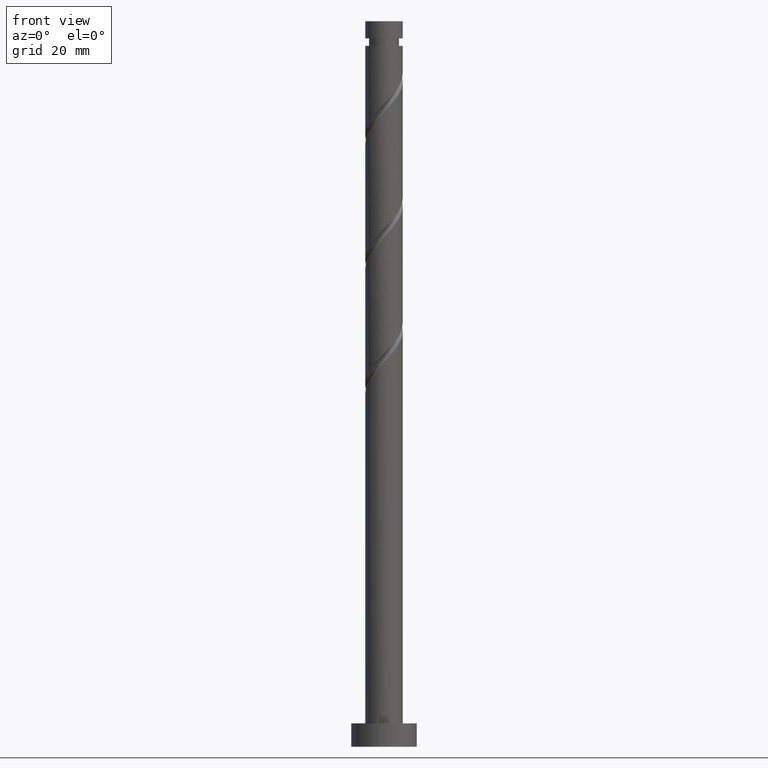
[diagram: clean part render]
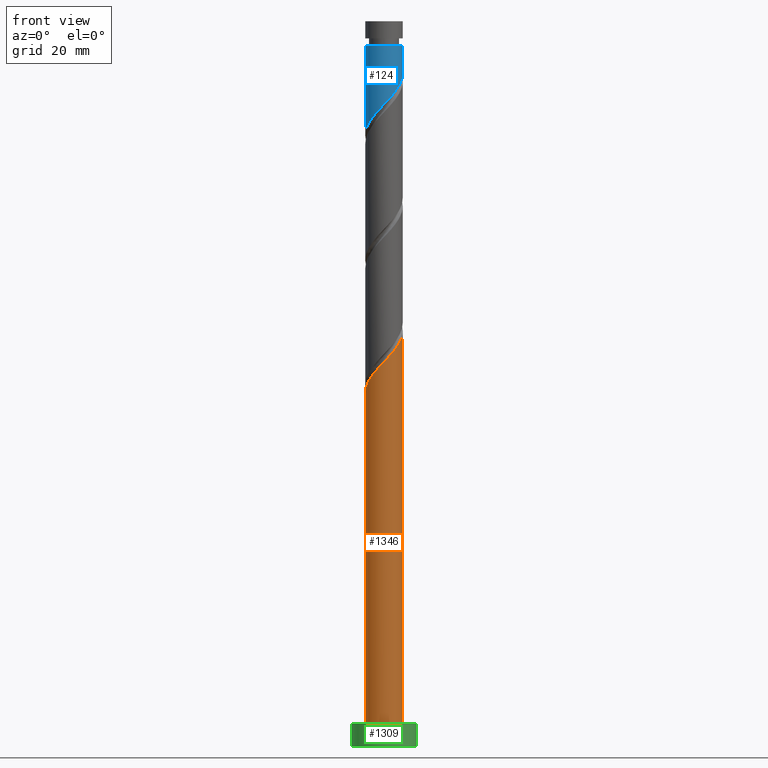
[diagram: same view with three faces highlighted in distinct colors, each labeled with its STEP entity id]
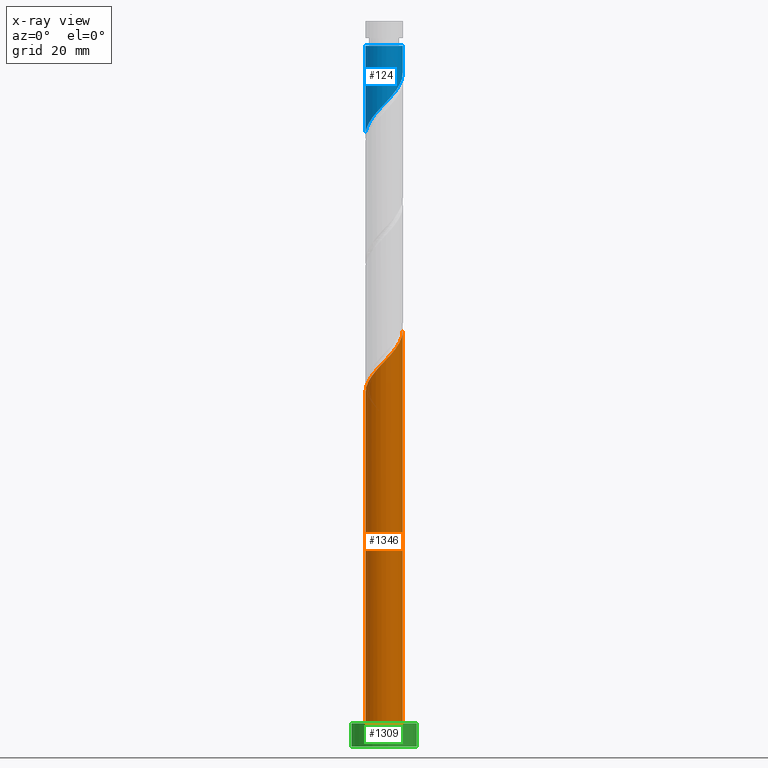
[diagram: x-ray of the same camera — body ghosted, the three highlighted faces saturated]
A machine part, front view with three faces highlighted in distinct colors.
The next image is the same camera in x-ray (body ghosted, the three faces saturated) — at least one of them is partly hidden behind the body in this view.
Their STEP definitions:

[orange] entity #1346 — the highlighted cylindrical surface (edge-blend (fillet) strip) has radius 4 mm, axis along (-0, -0, -1).
#28 = CARTESIAN_POINT ( 'NONE',  ( -4.000000000000005329, -2.752055009443334096E-15, 75.55009455226698378 ) ) ;
#82 = ORIENTED_EDGE ( 'NONE', *, *, #1225, .F. ) ;
#100 = ORIENTED_EDGE ( 'NONE', *, *, #752, .T. ) ;
#103 = CARTESIAN_POINT ( 'NONE',  ( 4.000000000000005329, 2.557616340297881178E-15, 88.88342788560029817 ) ) ;
#122 = CARTESIAN_POINT ( 'NONE',  ( 2.376675911072817282, -3.268358422650720740, 84.88439751641635667 ) ) ;
#144 = VERTEX_POINT ( 'NONE', #28 ) ;
#162 = EDGE_LOOP ( 'NONE', ( #1380, #82, #100, #1046 ) ) ;
#230 = VERTEX_POINT ( 'NONE', #681 ) ;
#359 = CARTESIAN_POINT ( 'NONE',  ( -3.960310248029106805, -0.8041752946599106666, 76.39954903156784383 ) ) ;
#360 = DIRECTION ( 'NONE',  ( -0.000000000000000000, -0.000000000000000000, -1.000000000000000000 ) ) ;
#366 = CARTESIAN_POINT ( 'NONE',  ( 0.000000000000000000, 0.000000000000000000, 5.000000000000000000 ) ) ;
#371 = CARTESIAN_POINT ( 'NONE',  ( -4.000000000000005329, -2.752055009443334096E-15, 75.55009455226698378 ) ) ;
#379 = CARTESIAN_POINT ( 'NONE',  ( 4.000000000000000000, 4.898587196589412829E-16, 155.0000000000000000 ) ) ;
#401 = VERTEX_POINT ( 'NONE', #1448 ) ;
#484 = DIRECTION ( 'NONE',  ( -0.000000000000000000, -0.000000000000000000, -1.000000000000000000 ) ) ;
#491 = CARTESIAN_POINT ( 'NONE',  ( 3.896423597087605994, -0.9043689247530174447, 87.91470054671937362 ) ) ;
#504 = CARTESIAN_POINT ( 'NONE',  ( 3.201206812320812833, -2.466379960577149699, 86.09651872853758903 ) ) ;
#513 = CARTESIAN_POINT ( 'NONE',  ( -1.449682647155075665, -3.728058505782533505, 80.64197327399209314 ) ) ;
#514 = VECTOR ( 'NONE', #360, 1000.000000000000000 ) ;
#591 = VERTEX_POINT ( 'NONE', #1373 ) ;
#601 = DIRECTION ( 'NONE',  ( -1.000000000000000000, 0.000000000000000000, 0.000000000000000000 ) ) ;
#614 =( BOUNDED_CURVE ( )  B_SPLINE_CURVE ( 2, ( #371, #1654, #1641, #359, #1634, #1515, #1261, #766, #896, #1273, #513, #884, #1132, #1279, #634, #890, #640, #122, #1497, #504, #1010, #1401, #491, #1387, #103 ),
 .UNSPECIFIED., .F., .T. ) 
 B_SPLINE_CURVE_WITH_KNOTS ( ( 3, 2, 2, 2, 2, 2, 2, 2, 2, 2, 2, 2, 3 ),
 ( 0.05452521624175123843, 0.05681818181818176772, 0.06818181818181823228, 0.07954545454545458583, 0.09090909090909093937, 0.1022727272727272929, 0.1136363636363636465, 0.1250000000000000000, 0.1363636363636363535, 0.1477272727272727071, 0.1590909090909090606, 0.1704545454545454142, 0.1795252162417513286 ),
 .UNSPECIFIED. ) 
 CURVE ( )  GEOMETRIC_REPRESENTATION_ITEM ( )  RATIONAL_B_SPLINE_CURVE ( ( 0.9061101570135622341, 0.9072237824201443424, 0.9090909090909219392, 0.8998376744372241776, 0.9090909090909219392, 0.8998376744372241776, 0.9090909090909219392, 0.8998376744372241776, 0.9090909090909219392, 0.8998376744372241776, 0.9090909090909219392, 0.8998376744372241776, 0.9090909090909219392, 0.8998376744372241776, 0.9090909090909219392, 0.8998376744372241776, 0.9090909090909219392, 0.8998376744372241776, 0.9090909090909219392, 0.8998376744372241776, 0.9090909090909219392, 0.8998376744372241776, 0.9090909090909219392, 0.9017048011080016634, 0.9061101570135623451 ) ) 
 REPRESENTATION_ITEM ( '' )  );
#634 = CARTESIAN_POINT ( 'NONE',  ( 0.7959899496852965717, -3.920000000000005702, 83.06621569823454365 ) ) ;
#640 = CARTESIAN_POINT ( 'NONE',  ( 1.868138386609204726, -3.536956172823916056, 84.27833691035574759 ) ) ;
#648 = VECTOR ( 'NONE', #484, 1000.000000000000000 ) ;
#681 = CARTESIAN_POINT ( 'NONE',  ( 4.000000000000005329, 2.557616340297881178E-15, 88.88342788560029817 ) ) ;
#752 = EDGE_CURVE ( 'NONE', #144, #401, #1629, .T. ) ;
#766 = CARTESIAN_POINT ( 'NONE',  ( -2.896854998579486917, -2.817620677520442651, 78.82379145581026592 ) ) ;
#884 = CARTESIAN_POINT ( 'NONE',  ( -0.9136687552802127410, -3.936491403624608143, 81.24803388005270222 ) ) ;
#890 = CARTESIAN_POINT ( 'NONE',  ( 1.359600862145592615, -3.805553922997109595, 83.67227630429512431 ) ) ;
#896 = CARTESIAN_POINT ( 'NONE',  ( -2.441275768804712420, -3.168623142730450759, 79.42985206187088920 ) ) ;
#897 = LINE ( 'NONE', #379, #514 ) ;
#951 = AXIS2_PLACEMENT_3D ( 'NONE', #366, #1499, #1123 ) ;
#976 = FACE_OUTER_BOUND ( 'NONE', #162, .T. ) ;
#1010 = CARTESIAN_POINT ( 'NONE',  ( 3.483800894132681236, -1.965485011400590842, 86.70257933459818389 ) ) ;
#1046 = ORIENTED_EDGE ( 'NONE', *, *, #1626, .T. ) ;
#1103 = CYLINDRICAL_SURFACE ( 'NONE', #1234, 4.000000000000000000 ) ;
#1123 = DIRECTION ( 'NONE',  ( 1.000000000000000000, 0.000000000000000000, 0.000000000000000000 ) ) ;
#1132 = CARTESIAN_POINT ( 'NONE',  ( -0.3406448590276058841, -3.985468740313755642, 81.85409448611332550 ) ) ;
#1225 = EDGE_CURVE ( 'NONE', #144, #230, #614, .T. ) ;
#1234 = AXIS2_PLACEMENT_3D ( 'NONE', #1352, #1614, #601 ) ;
#1261 = CARTESIAN_POINT ( 'NONE',  ( -3.235091246491827999, -2.352484777181776288, 78.21773084974967105 ) ) ;
#1273 = CARTESIAN_POINT ( 'NONE',  ( -1.985696539029938146, -3.519625607940459311, 80.03591266793146985 ) ) ;
#1279 = CARTESIAN_POINT ( 'NONE',  ( 0.2323790372250007230, -4.034446077002900921, 82.46015509217390616 ) ) ;
#1346 = ADVANCED_FACE ( 'NONE', ( #976 ), #1103, .T. ) ;
#1352 = CARTESIAN_POINT ( 'NONE',  ( 0.000000000000000000, 0.000000000000000000, 155.0000000000000000 ) ) ;
#1373 = CARTESIAN_POINT ( 'NONE',  ( 4.000000000000000000, 4.898587196589412829E-16, 5.000000000000000000 ) ) ;
#1380 = ORIENTED_EDGE ( 'NONE', *, *, #1623, .F. ) ;
#1387 = CARTESIAN_POINT ( 'NONE',  ( 4.000000000000007105, -0.4581157095404908008, 88.39746793262902713 ) ) ;
#1401 = CARTESIAN_POINT ( 'NONE',  ( 3.766394975944548751, -1.464590062224029987, 87.30863994065876454 ) ) ;
#1448 = CARTESIAN_POINT ( 'NONE',  ( -4.000000000000000000, 0.000000000000000000, 5.000000000000000000 ) ) ;
#1450 = CIRCLE ( 'NONE', #951, 4.000000000000000000 ) ;
#1497 = CARTESIAN_POINT ( 'NONE',  ( 2.788941361696814614, -2.867369191613936330, 85.49045812247696574 ) ) ;
#1499 = DIRECTION ( 'NONE',  ( 0.000000000000000000, 0.000000000000000000, 1.000000000000000000 ) ) ;
#1504 = CARTESIAN_POINT ( 'NONE',  ( -4.000000000000000000, 0.000000000000000000, 155.0000000000000000 ) ) ;
#1515 = CARTESIAN_POINT ( 'NONE',  ( -3.573327494404169524, -1.887348876843109702, 77.61167024368907619 ) ) ;
#1614 = DIRECTION ( 'NONE',  ( -0.000000000000000000, -0.000000000000000000, -1.000000000000000000 ) ) ;
#1623 = EDGE_CURVE ( 'NONE', #230, #591, #897, .T. ) ;
#1626 = EDGE_CURVE ( 'NONE', #401, #591, #1450, .T. ) ;
#1629 = LINE ( 'NONE', #1504, #648 ) ;
#1634 = CARTESIAN_POINT ( 'NONE',  ( -3.766818871216639053, -1.345762085751509796, 77.00560963762846711 ) ) ;
#1641 = CARTESIAN_POINT ( 'NONE',  ( -3.993381233129885466, -0.2300137536889534373, 75.79348842550726317 ) ) ;
#1654 = CARTESIAN_POINT ( 'NONE',  ( -4.000000000000006217, -0.1151021060952866354, 75.67219255698520897 ) ) ;

[blue] entity #124 — the highlighted cylindrical surface (edge-blend (fillet) strip) has radius 4 mm, axis along (-0, -0, -1).
#67 = DIRECTION ( 'NONE',  ( -1.000000000000000000, 0.000000000000000000, 0.000000000000000000 ) ) ;
#86 = VERTEX_POINT ( 'NONE', #1407 ) ;
#91 = CARTESIAN_POINT ( 'NONE',  ( -3.766394975944543422, -1.464590062224028433, 132.1571247891436371 ) ) ;
#96 = VERTEX_POINT ( 'NONE', #1663 ) ;
#104 = CARTESIAN_POINT ( 'NONE',  ( 4.000000000000000000, 4.898587196589412829E-16, 155.0000000000000000 ) ) ;
#108 = CARTESIAN_POINT ( 'NONE',  ( -1.868138386609203616, -3.536956172823910727, 135.1874278194466399 ) ) ;
#121 = DIRECTION ( 'NONE',  ( -1.000000000000000000, 0.000000000000000000, 0.000000000000000000 ) ) ;
#124 = ADVANCED_FACE ( 'NONE', ( #520 ), #1032, .T. ) ;
#186 = CARTESIAN_POINT ( 'NONE',  ( 0.000000000000000000, 0.000000000000000000, 149.7328823649012008 ) ) ;
#218 = CARTESIAN_POINT ( 'NONE',  ( 4.000000000000000000, 9.572365250237742804E-16, 143.9156701775353895 ) ) ;
#220 = CARTESIAN_POINT ( 'NONE',  ( -3.483800894132676351, -1.965485011400587068, 132.7631853952042036 ) ) ;
#231 = CARTESIAN_POINT ( 'NONE',  ( -4.000000000000000000, -1.824732125826569623E-15, 130.5823368442021035 ) ) ;
#280 = EDGE_LOOP ( 'NONE', ( #1240, #861, #835, #1074 ) ) ;
#350 = DIRECTION ( 'NONE',  ( -0.000000000000000000, -0.000000000000000000, -1.000000000000000000 ) ) ;
#357 = CARTESIAN_POINT ( 'NONE',  ( 4.000000000000000000, -0.1151021060953038855, 143.7935721728172211 ) ) ;
#474 = CARTESIAN_POINT ( 'NONE',  ( 1.449682647155072557, -3.728058505782528620, 138.8237914558102659 ) ) ;
#487 = CARTESIAN_POINT ( 'NONE',  ( 3.573327494404164639, -1.887348876843107703, 141.8540944861133255 ) ) ;
#494 = EDGE_CURVE ( 'NONE', #96, #1063, #1000, .T. ) ;
#506 = VECTOR ( 'NONE', #1219, 1000.000000000000000 ) ;
#507 = EDGE_CURVE ( 'NONE', #1063, #86, #1454, .T. ) ;
#520 = FACE_OUTER_BOUND ( 'NONE', #280, .T. ) ;
#608 = CARTESIAN_POINT ( 'NONE',  ( -3.896423597087600665, -0.9043689247530153352, 131.5510641830830139 ) ) ;
#626 = CARTESIAN_POINT ( 'NONE',  ( -2.788941361696812393, -2.867369191613931001, 133.9753066073254502 ) ) ;
#698 = DIRECTION ( 'NONE',  ( -0.000000000000000000, -0.000000000000000000, -1.000000000000000000 ) ) ;
#735 = VERTEX_POINT ( 'NONE', #218 ) ;
#750 = CARTESIAN_POINT ( 'NONE',  ( 2.896854998579484253, -2.817620677520439987, 140.6419732739920789 ) ) ;
#835 = ORIENTED_EDGE ( 'NONE', *, *, #507, .T. ) ;
#861 = ORIENTED_EDGE ( 'NONE', *, *, #494, .T. ) ;
#873 = CARTESIAN_POINT ( 'NONE',  ( 3.235091246491824002, -2.352484777181773179, 141.2480338800527591 ) ) ;
#882 = CARTESIAN_POINT ( 'NONE',  ( -1.359600862145591949, -3.805553922997103822, 135.7934884255072632 ) ) ;
#907 = LINE ( 'NONE', #104, #1547 ) ;
#921 = AXIS2_PLACEMENT_3D ( 'NONE', #1653, #1272, #121 ) ;
#967 = CARTESIAN_POINT ( 'NONE',  ( -3.999999999999993339, 0.000000000000000000, 149.7328823649012008 ) ) ;
#1000 = CIRCLE ( 'NONE', #1229, 3.999999999999993339 ) ;
#1032 = CYLINDRICAL_SURFACE ( 'NONE', #921, 4.000000000000000000 ) ;
#1063 = VERTEX_POINT ( 'NONE', #967 ) ;
#1074 = ORIENTED_EDGE ( 'NONE', *, *, #1224, .F. ) ;
#1119 = CARTESIAN_POINT ( 'NONE',  ( 3.766818871216632836, -1.345762085751509129, 142.4601550921739772 ) ) ;
#1136 = CARTESIAN_POINT ( 'NONE',  ( 4.000000000000000000, 9.572365250237742804E-16, 143.9156701775353895 ) ) ;
#1219 = DIRECTION ( 'NONE',  ( -0.000000000000000000, -0.000000000000000000, -1.000000000000000000 ) ) ;
#1224 = EDGE_CURVE ( 'NONE', #735, #86, #1522, .T. ) ;
#1229 = AXIS2_PLACEMENT_3D ( 'NONE', #186, #698, #67 ) ;
#1240 = ORIENTED_EDGE ( 'NONE', *, *, #1644, .F. ) ;
#1241 = CARTESIAN_POINT ( 'NONE',  ( 1.985696539029934149, -3.519625607940456202, 139.4298520618708892 ) ) ;
#1252 = CARTESIAN_POINT ( 'NONE',  ( 0.9136687552802118528, -3.936491403624601926, 138.2177308497496995 ) ) ;
#1258 = CARTESIAN_POINT ( 'NONE',  ( -0.7959899496852971268, -3.919999999999999929, 136.3995490315678012 ) ) ;
#1272 = DIRECTION ( 'NONE',  ( -0.000000000000000000, -0.000000000000000000, -1.000000000000000000 ) ) ;
#1367 = CARTESIAN_POINT ( 'NONE',  ( -3.201206812320810169, -2.466379960577145702, 133.3692460012648553 ) ) ;
#1377 = CARTESIAN_POINT ( 'NONE',  ( -4.000000000000002665, -0.4581157095404866930, 131.0682967971733888 ) ) ;
#1385 = CARTESIAN_POINT ( 'NONE',  ( 0.3406448590276037192, -3.985468740313750313, 137.6116702436890478 ) ) ;
#1407 = CARTESIAN_POINT ( 'NONE',  ( -4.000000000000000000, -1.824732125826569623E-15, 130.5823368442021035 ) ) ;
#1454 = LINE ( 'NONE', #1582, #506 ) ;
#1495 = CARTESIAN_POINT ( 'NONE',  ( 3.960310248029102365, -0.8041752946599112217, 143.0662156982345437 ) ) ;
#1507 = CARTESIAN_POINT ( 'NONE',  ( -0.2323790372250022218, -4.034446077002896480, 137.0056096376284813 ) ) ;
#1522 =( BOUNDED_CURVE ( )  B_SPLINE_CURVE ( 2, ( #1136, #357, #1620, #1495, #1119, #487, #873, #750, #1632, #1241, #474, #1252, #1385, #1507, #1258, #882, #108, #1639, #626, #1367, #220, #91, #608, #1377, #231 ),
 .UNSPECIFIED., .F., .T. ) 
 B_SPLINE_CURVE_WITH_KNOTS ( ( 3, 2, 2, 2, 2, 2, 2, 2, 2, 2, 2, 2, 3 ),
 ( 0.3045252162417516062, 0.3068181818181818232, 0.3181818181818181768, 0.3295454545454545303, 0.3409090909090908839, 0.3522727272727272929, 0.3636363636363636465, 0.3750000000000000000, 0.3863636363636363535, 0.3977272727272727071, 0.4090909090909091161, 0.4204545454545454697, 0.4295252162417514397 ),
 .UNSPECIFIED. ) 
 CURVE ( )  GEOMETRIC_REPRESENTATION_ITEM ( )  RATIONAL_B_SPLINE_CURVE ( ( 0.9061101570135571270, 0.9072237824201392353, 0.9090909090909164991, 0.8998376744372188485, 0.9090909090909164991, 0.8998376744372188485, 0.9090909090909164991, 0.8998376744372188485, 0.9090909090909164991, 0.8998376744372188485, 0.9090909090909164991, 0.8998376744372188485, 0.9090909090909164991, 0.8998376744372188485, 0.9090909090909164991, 0.8998376744372188485, 0.9090909090909164991, 0.8998376744372188485, 0.9090909090909164991, 0.8998376744372188485, 0.9090909090909164991, 0.8998376744372188485, 0.9090909090909164991, 0.9017048011079962233, 0.9061101570135570160 ) ) 
 REPRESENTATION_ITEM ( '' )  );
#1547 = VECTOR ( 'NONE', #350, 1000.000000000000000 ) ;
#1582 = CARTESIAN_POINT ( 'NONE',  ( -4.000000000000000000, 0.000000000000000000, 155.0000000000000000 ) ) ;
#1620 = CARTESIAN_POINT ( 'NONE',  ( 3.993381233129879693, -0.2300137536889547418, 143.6722763042951669 ) ) ;
#1632 = CARTESIAN_POINT ( 'NONE',  ( 2.441275768804707980, -3.168623142730448095, 140.0359126679314841 ) ) ;
#1639 = CARTESIAN_POINT ( 'NONE',  ( -2.376675911072814618, -3.268358422650716744, 134.5813672133860450 ) ) ;
#1644 = EDGE_CURVE ( 'NONE', #96, #735, #907, .T. ) ;
#1653 = CARTESIAN_POINT ( 'NONE',  ( 0.000000000000000000, 0.000000000000000000, 155.0000000000000000 ) ) ;
#1663 = CARTESIAN_POINT ( 'NONE',  ( 3.999999999999993339, 4.898587196589407898E-16, 149.7328823649012008 ) ) ;

[green] entity #1309 — the highlighted cylindrical surface (edge-blend (fillet) strip) has radius 7 mm, axis along (-0, -0, -1).
#14 = ORIENTED_EDGE ( 'NONE', *, *, #1320, .T. ) ;
#84 = AXIS2_PLACEMENT_3D ( 'NONE', #621, #448, #715 ) ;
#90 = ORIENTED_EDGE ( 'NONE', *, *, #1075, .F. ) ;
#94 = DIRECTION ( 'NONE',  ( -0.000000000000000000, -0.000000000000000000, -1.000000000000000000 ) ) ;
#133 = VECTOR ( 'NONE', #94, 1000.000000000000000 ) ;
#223 = AXIS2_PLACEMENT_3D ( 'NONE', #466, #970, #580 ) ;
#249 = CIRCLE ( 'NONE', #223, 7.000000000000000000 ) ;
#436 = VERTEX_POINT ( 'NONE', #441 ) ;
#441 = CARTESIAN_POINT ( 'NONE',  ( -7.000000000000000000, 0.000000000000000000, 5.000000000000000000 ) ) ;
#448 = DIRECTION ( 'NONE',  ( -0.000000000000000000, -0.000000000000000000, -1.000000000000000000 ) ) ;
#466 = CARTESIAN_POINT ( 'NONE',  ( 0.000000000000000000, 0.000000000000000000, 0.000000000000000000 ) ) ;
#580 = DIRECTION ( 'NONE',  ( 1.000000000000000000, 0.000000000000000000, 0.000000000000000000 ) ) ;
#610 = CARTESIAN_POINT ( 'NONE',  ( 7.000000000000000000, 8.572527594031473190E-16, 5.000000000000000000 ) ) ;
#621 = CARTESIAN_POINT ( 'NONE',  ( 0.000000000000000000, 0.000000000000000000, 5.000000000000000000 ) ) ;
#646 = CARTESIAN_POINT ( 'NONE',  ( -7.000000000000000000, 0.000000000000000000, 0.000000000000000000 ) ) ;
#673 = VECTOR ( 'NONE', #983, 1000.000000000000000 ) ;
#697 = CARTESIAN_POINT ( 'NONE',  ( 0.000000000000000000, 0.000000000000000000, 5.000000000000000000 ) ) ;
#700 = CARTESIAN_POINT ( 'NONE',  ( 7.000000000000000000, 8.572527594031473190E-16, 5.000000000000000000 ) ) ;
#715 = DIRECTION ( 'NONE',  ( -1.000000000000000000, 0.000000000000000000, 0.000000000000000000 ) ) ;
#726 = AXIS2_PLACEMENT_3D ( 'NONE', #697, #1084, #1348 ) ;
#744 = FACE_OUTER_BOUND ( 'NONE', #1636, .T. ) ;
#802 = VERTEX_POINT ( 'NONE', #646 ) ;
#910 = VERTEX_POINT ( 'NONE', #1161 ) ;
#970 = DIRECTION ( 'NONE',  ( 0.000000000000000000, 0.000000000000000000, 1.000000000000000000 ) ) ;
#983 = DIRECTION ( 'NONE',  ( -0.000000000000000000, -0.000000000000000000, -1.000000000000000000 ) ) ;
#991 = LINE ( 'NONE', #1113, #673 ) ;
#1075 = EDGE_CURVE ( 'NONE', #436, #1506, #1523, .T. ) ;
#1084 = DIRECTION ( 'NONE',  ( 0.000000000000000000, 0.000000000000000000, 1.000000000000000000 ) ) ;
#1113 = CARTESIAN_POINT ( 'NONE',  ( -7.000000000000000000, 0.000000000000000000, 5.000000000000000000 ) ) ;
#1161 = CARTESIAN_POINT ( 'NONE',  ( 7.000000000000000000, 8.572527594031473190E-16, 0.000000000000000000 ) ) ;
#1244 = LINE ( 'NONE', #700, #133 ) ;
#1254 = CYLINDRICAL_SURFACE ( 'NONE', #84, 7.000000000000000000 ) ;
#1309 = ADVANCED_FACE ( 'NONE', ( #744 ), #1254, .T. ) ;
#1320 = EDGE_CURVE ( 'NONE', #436, #802, #991, .T. ) ;
#1348 = DIRECTION ( 'NONE',  ( 1.000000000000000000, 0.000000000000000000, 0.000000000000000000 ) ) ;
#1403 = EDGE_CURVE ( 'NONE', #802, #910, #249, .T. ) ;
#1500 = ORIENTED_EDGE ( 'NONE', *, *, #1403, .T. ) ;
#1506 = VERTEX_POINT ( 'NONE', #610 ) ;
#1523 = CIRCLE ( 'NONE', #726, 7.000000000000000000 ) ;
#1550 = EDGE_CURVE ( 'NONE', #1506, #910, #1244, .T. ) ;
#1621 = ORIENTED_EDGE ( 'NONE', *, *, #1550, .F. ) ;
#1636 = EDGE_LOOP ( 'NONE', ( #1621, #90, #14, #1500 ) ) ;